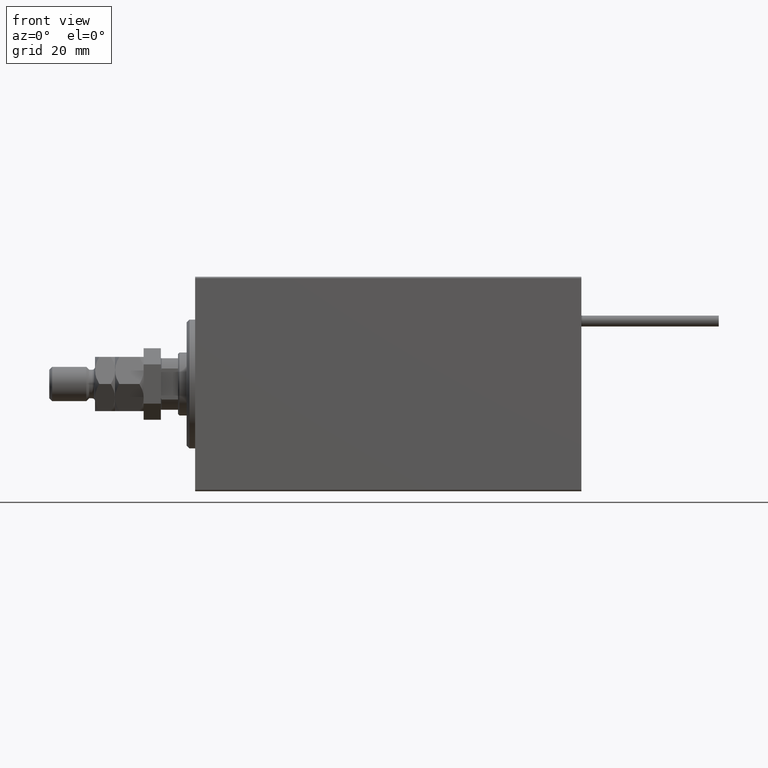
[diagram: clean part render]
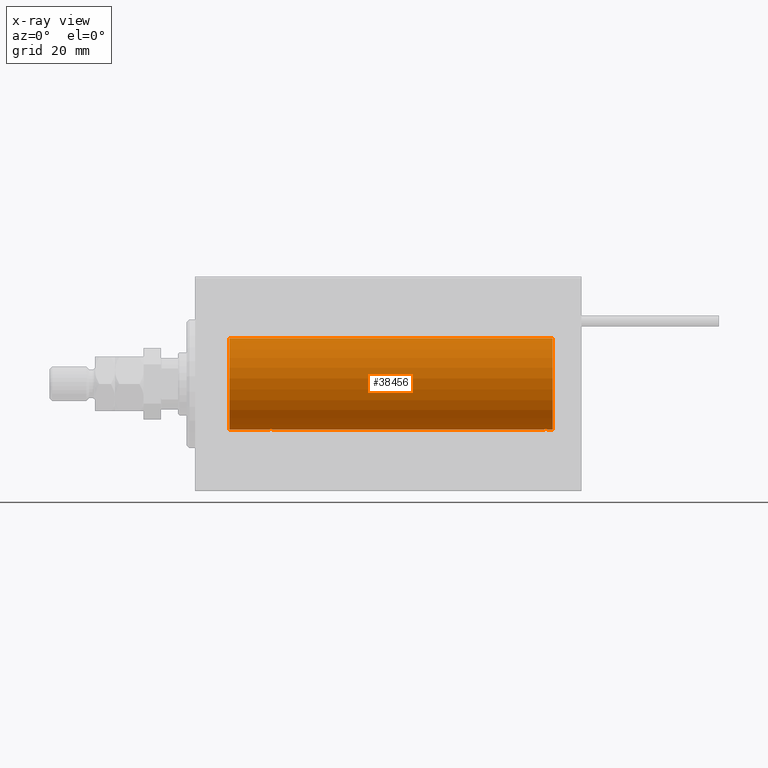
[diagram: x-ray — body ghosted, one internal face saturated and labeled with its STEP entity id]
A machine part, front view, then the same camera in x-ray: the body is ghosted and one INTERNAL B-rep face — a face not visible from any outside direction — is saturated and labeled: STEP entity #38456.
In plain terms, the highlighted cylindrical surface (partial cylindrical patch) has radius 16 mm, axis along (-1, -0, -0).
Its self-contained STEP definition (entity closure, byte-faithful):
#659 = DIRECTION ( 'NONE',  ( -1.000000000000000000, 0.000000000000000000, 0.000000000000000000 ) ) ;
#996 = CARTESIAN_POINT ( 'NONE',  ( 125.0000000000000000, 0.000000000000000000, 16.00000000000000000 ) ) ;
#1014 = CARTESIAN_POINT ( 'NONE',  ( 27.38846140829280529, -1.796613193944152753, -15.89889131367403330 ) ) ;
#1539 = CARTESIAN_POINT ( 'NONE',  ( 27.14636362870458086, -1.897207606501646104, -15.88720136683947537 ) ) ;
#1569 = CYLINDRICAL_SURFACE ( 'NONE', #43127, 16.00000000000000000 ) ;
#3205 = CARTESIAN_POINT ( 'NONE',  ( 123.7202803347841638, -1.589957129871029551, -15.92097237843275259 ) ) ;
#3465 = CARTESIAN_POINT ( 'NONE',  ( 123.1463636287045631, -1.897207606501647881, -15.88720136683947537 ) ) ;
#3695 = VECTOR ( 'NONE', #20656, 1000.000000000000000 ) ;
#3726 = CARTESIAN_POINT ( 'NONE',  ( 123.5032078479132025, -1.735114343256366043, -15.90580722143557857 ) ) ;
#4025 = ORIENTED_EDGE ( 'NONE', *, *, #26823, .F. ) ;
#5593 = CARTESIAN_POINT ( 'NONE',  ( 125.0000000000000000, 0.000000000000000000, 0.000000000000000000 ) ) ;
#5618 = DIRECTION ( 'NONE',  ( 0.000000000000000000, 0.000000000000000000, 1.000000000000000000 ) ) ;
#5804 = EDGE_CURVE ( 'NONE', #9066, #28895, #22082, .T. ) ;
#5828 = CARTESIAN_POINT ( 'NONE',  ( 24.50000000000000000, -2.931586893697621157E-15, -16.00000000000000000 ) ) ;
#6898 = VERTEX_POINT ( 'NONE', #20383 ) ;
#6953 = CARTESIAN_POINT ( 'NONE',  ( 123.8230484471320665, -1.505501573616976563, -15.92928245046055302 ) ) ;
#7214 = CARTESIAN_POINT ( 'NONE',  ( 121.6140785003150881, -1.797863738508706843, -15.89874935709250892 ) ) ;
#7484 = CARTESIAN_POINT ( 'NONE',  ( 124.5000000000000284, -0.2611263091397175717, -16.00000000000000711 ) ) ;
#8707 = EDGE_CURVE ( 'NONE', #36964, #6898, #50677, .T. ) ;
#9066 = VERTEX_POINT ( 'NONE', #34282 ) ;
#9830 = CARTESIAN_POINT ( 'NONE',  ( 24.75321871145306218, -1.008257970366813749, -15.97001510549667458 ) ) ;
#11034 = LINE ( 'NONE', #19054, #11179 ) ;
#11054 = CARTESIAN_POINT ( 'NONE',  ( 125.0000000000000000, 1.959434878635765131E-15, -16.00000000000000000 ) ) ;
#11179 = VECTOR ( 'NONE', #15321, 1000.000000000000000 ) ;
#11225 = CARTESIAN_POINT ( 'NONE',  ( 120.9023686404279943, -1.231048876942810066, -15.95364199493483426 ) ) ;
#11380 = EDGE_CURVE ( 'NONE', #6898, #19098, #24653, .T. ) ;
#11704 = EDGE_CURVE ( 'NONE', #38589, #36964, #47652, .T. ) ;
#11715 = ORIENTED_EDGE ( 'NONE', *, *, #26161, .T. ) ;
#13349 = VECTOR ( 'NONE', #18337, 1000.000000000000000 ) ;
#13848 = CARTESIAN_POINT ( 'NONE',  ( 25.61407850031505617, -1.797863738508699294, -15.89874935709251247 ) ) ;
#14070 = CARTESIAN_POINT ( 'NONE',  ( 125.0000000000000000, 1.959434878635765131E-15, -16.00000000000000000 ) ) ;
#15244 = CARTESIAN_POINT ( 'NONE',  ( 122.3691959142342256, -2.000094120337584158, -15.87449600834271024 ) ) ;
#15321 = DIRECTION ( 'NONE',  ( -1.000000000000000000, -0.000000000000000000, -0.000000000000000000 ) ) ;
#15773 = CARTESIAN_POINT ( 'NONE',  ( 123.3884614082928550, -1.796613193944152531, -15.89889131367403685 ) ) ;
#16294 = AXIS2_PLACEMENT_3D ( 'NONE', #49642, #659, #37061 ) ;
#16954 = ORIENTED_EDGE ( 'NONE', *, *, #11704, .T. ) ;
#17109 = FACE_OUTER_BOUND ( 'NONE', #22193, .T. ) ;
#17633 = DIRECTION ( 'NONE',  ( 0.000000000000000000, 0.000000000000000000, 1.000000000000000000 ) ) ;
#17856 = CARTESIAN_POINT ( 'NONE',  ( 25.85623329282660166, -1.898087287925298794, -15.88709570026284545 ) ) ;
#18327 = B_SPLINE_CURVE_WITH_KNOTS ( 'NONE', 3,
 ( #27001, #7484, #40107, #40365, #43865, #6953, #3205, #3726, #15773, #3465, #35576, #24044, #32086, #15244, #31551, #48424, #47892, #7214, #35841, #36372, #35305, #11225, #22989, #39847, #52158, #44390 ),
 .UNSPECIFIED., .F., .F.,
 ( 4, 2, 2, 2, 2, 2, 2, 2, 2, 2, 2, 2, 4 ),
 ( 0.006259031236593872935, 0.007041222816026943693, 0.007823414395460012716, 0.008214510185176548962, 0.008605605974893081739, 0.008996701764609617985, 0.009387797554326150762, 0.009778893344042687008, 0.01016998913375921978, 0.01056108492347575603, 0.01095218071319228881, 0.01173437229262535957, 0.01251656387205842859 ),
 .UNSPECIFIED. ) ;
#18337 = DIRECTION ( 'NONE',  ( -1.000000000000000000, -0.000000000000000000, -0.000000000000000000 ) ) ;
#18379 = CARTESIAN_POINT ( 'NONE',  ( 26.36919591423421139, -2.000094120337574388, -15.87449600834271024 ) ) ;
#19054 = CARTESIAN_POINT ( 'NONE',  ( 125.0000000000000000, 1.959434878635765131E-15, -16.00000000000000000 ) ) ;
#19098 = VERTEX_POINT ( 'NONE', #47249 ) ;
#20268 = VECTOR ( 'NONE', #39415, 1000.000000000000000 ) ;
#20383 = CARTESIAN_POINT ( 'NONE',  ( 11.99999999999999645, 1.959434878635765131E-15, -16.00000000000000000 ) ) ;
#20656 = DIRECTION ( 'NONE',  ( -1.000000000000000000, -0.000000000000000000, -0.000000000000000000 ) ) ;
#21338 = CARTESIAN_POINT ( 'NONE',  ( 28.44751141031268915, -0.5244724041436300555, -15.99321727742820620 ) ) ;
#21604 = CARTESIAN_POINT ( 'NONE',  ( 26.23917179650637266, -1.987201773464430055, -15.87613558886576470 ) ) ;
#21868 = CARTESIAN_POINT ( 'NONE',  ( 27.82304844713206293, -1.505501573616970568, -15.92928245046054947 ) ) ;
#21986 = ORIENTED_EDGE ( 'NONE', *, *, #8707, .T. ) ;
#22082 = LINE ( 'NONE', #14070, #13349 ) ;
#22193 = EDGE_LOOP ( 'NONE', ( #4025, #41952, #50559, #11715, #16954, #21986, #24279, #49689 ) ) ;
#22384 = CARTESIAN_POINT ( 'NONE',  ( 26.63366663175618498, -1.999904855391105851, -15.87451985347842687 ) ) ;
#22417 = CARTESIAN_POINT ( 'NONE',  ( 124.5000000000000142, 1.959434851248285101E-15, -16.00000000000000000 ) ) ;
#22989 = CARTESIAN_POINT ( 'NONE',  ( 120.7532187114530871, -1.008257970366822631, -15.97001510549667458 ) ) ;
#23748 = CARTESIAN_POINT ( 'NONE',  ( 28.49999999999999645, 1.959434851239213200E-15, -16.00000000000000000 ) ) ;
#24044 = CARTESIAN_POINT ( 'NONE',  ( 122.7637046287817810, -1.986819684797424879, -15.87618369521983830 ) ) ;
#24279 = ORIENTED_EDGE ( 'NONE', *, *, #11380, .T. ) ;
#24653 = CIRCLE ( 'NONE', #45191, 16.00000000000000000 ) ;
#26137 = CARTESIAN_POINT ( 'NONE',  ( 24.55325995304361086, -0.5272875822566835957, -15.99312147175147736 ) ) ;
#26161 = EDGE_CURVE ( 'NONE', #43197, #38589, #11034, .T. ) ;
#26823 = EDGE_CURVE ( 'NONE', #9066, #31076, #28241, .T. ) ;
#27001 = CARTESIAN_POINT ( 'NONE',  ( 124.5000000000000142, 1.959434851248285101E-15, -16.00000000000000000 ) ) ;
#28241 = CIRCLE ( 'NONE', #16294, 16.00000000000000000 ) ;
#28895 = VERTEX_POINT ( 'NONE', #22417 ) ;
#28927 = CARTESIAN_POINT ( 'NONE',  ( 120.5000000000000142, -1.209844185672201777E-14, -16.00000000000000000 ) ) ;
#29899 = CARTESIAN_POINT ( 'NONE',  ( 27.50320784791317763, -1.735114343256362712, -15.90580722143557502 ) ) ;
#29929 = DIRECTION ( 'NONE',  ( -1.000000000000000000, -0.000000000000000000, -0.000000000000000000 ) ) ;
#31076 = VERTEX_POINT ( 'NONE', #996 ) ;
#31551 = CARTESIAN_POINT ( 'NONE',  ( 122.2391717965063833, -1.987201773464437160, -15.87613558886576470 ) ) ;
#31590 = EDGE_CURVE ( 'NONE', #31076, #19098, #32716, .T. ) ;
#32086 = CARTESIAN_POINT ( 'NONE',  ( 122.6336666317562418, -1.999904855391112735, -15.87451985347843042 ) ) ;
#32716 = LINE ( 'NONE', #49061, #3695 ) ;
#33657 = CARTESIAN_POINT ( 'NONE',  ( 27.01937114547927266, -1.935780515549990088, -15.88248768234623576 ) ) ;
#33919 = CARTESIAN_POINT ( 'NONE',  ( 25.98335998918949841, -1.936513707523809469, -15.88239801746204805 ) ) ;
#34174 = CARTESIAN_POINT ( 'NONE',  ( 25.28178127159713995, -1.591545514129671046, -15.92081325887754417 ) ) ;
#34282 = CARTESIAN_POINT ( 'NONE',  ( 125.0000000000000000, 1.959434878635765131E-15, -16.00000000000000000 ) ) ;
#34759 = CARTESIAN_POINT ( 'NONE',  ( 11.99999999999999645, 0.000000000000000000, 0.000000000000000000 ) ) ;
#35305 = CARTESIAN_POINT ( 'NONE',  ( 121.1789566519659473, -1.507256214862793264, -15.92911555180481109 ) ) ;
#35576 = CARTESIAN_POINT ( 'NONE',  ( 123.0193711454792975, -1.935780515549994307, -15.88248768234623221 ) ) ;
#35841 = CARTESIAN_POINT ( 'NONE',  ( 121.4992163424659850, -1.736521253711160728, -15.90565326803670665 ) ) ;
#36372 = CARTESIAN_POINT ( 'NONE',  ( 121.2817812715971399, -1.591545514129688588, -15.92081325887754417 ) ) ;
#36964 = VERTEX_POINT ( 'NONE', #40172 ) ;
#37061 = DIRECTION ( 'NONE',  ( 0.000000000000000000, 0.000000000000000000, 1.000000000000000000 ) ) ;
#37680 = CARTESIAN_POINT ( 'NONE',  ( 28.09938581325380724, -1.228793614424118497, -15.95381972293796835 ) ) ;
#38196 = CARTESIAN_POINT ( 'NONE',  ( 27.72028033478412112, -1.589957129871027330, -15.92097237843274904 ) ) ;
#38456 = ADVANCED_FACE ( 'NONE', ( #17109 ), #1569, .F. ) ;
#38589 = VERTEX_POINT ( 'NONE', #23748 ) ;
#39415 = DIRECTION ( 'NONE',  ( -1.000000000000000000, -0.000000000000000000, -0.000000000000000000 ) ) ;
#39847 = CARTESIAN_POINT ( 'NONE',  ( 120.5532599530436215, -0.5272875822566934767, -15.99312147175147381 ) ) ;
#40107 = CARTESIAN_POINT ( 'NONE',  ( 124.4475114103127282, -0.5244724041436340523, -15.99321727742820975 ) ) ;
#40172 = CARTESIAN_POINT ( 'NONE',  ( 24.50000000000000000, -2.931586893697621157E-15, -16.00000000000000000 ) ) ;
#40365 = CARTESIAN_POINT ( 'NONE',  ( 124.2481662700621143, -1.005876079953903490, -15.97016854943970188 ) ) ;
#41691 = CARTESIAN_POINT ( 'NONE',  ( 28.50000000000000355, -0.2611263091397186265, -16.00000000000000355 ) ) ;
#41952 = ORIENTED_EDGE ( 'NONE', *, *, #5804, .T. ) ;
#41953 = CARTESIAN_POINT ( 'NONE',  ( 26.76370462878175260, -1.986819684797417995, -15.87618369521984185 ) ) ;
#42470 = CARTESIAN_POINT ( 'NONE',  ( 24.50000000000000711, -0.2645044045393414311, -16.00000000000000355 ) ) ;
#42661 = EDGE_CURVE ( 'NONE', #28895, #43197, #18327, .T. ) ;
#42729 = CARTESIAN_POINT ( 'NONE',  ( 28.24816627006211078, -1.005876079953899049, -15.97016854943970188 ) ) ;
#43127 = AXIS2_PLACEMENT_3D ( 'NONE', #5593, #29929, #17633 ) ;
#43197 = VERTEX_POINT ( 'NONE', #28927 ) ;
#43865 = CARTESIAN_POINT ( 'NONE',  ( 124.0993858132538321, -1.228793614424122271, -15.95381972293797013 ) ) ;
#44390 = CARTESIAN_POINT ( 'NONE',  ( 120.5000000000000142, -1.209844185672201777E-14, -16.00000000000000000 ) ) ;
#45191 = AXIS2_PLACEMENT_3D ( 'NONE', #34759, #50567, #5618 ) ;
#45985 = CARTESIAN_POINT ( 'NONE',  ( 28.49999999999999645, 1.959434851239213200E-15, -16.00000000000000000 ) ) ;
#46247 = CARTESIAN_POINT ( 'NONE',  ( 25.49921634246596014, -1.736521253711144963, -15.90565326803671375 ) ) ;
#46503 = CARTESIAN_POINT ( 'NONE',  ( 24.90236864042802267, -1.231048876942801407, -15.95364199493483426 ) ) ;
#47249 = CARTESIAN_POINT ( 'NONE',  ( 11.99999999999999645, 0.000000000000000000, 16.00000000000000000 ) ) ;
#47652 = B_SPLINE_CURVE_WITH_KNOTS ( 'NONE', 3,
 ( #45985, #41691, #21338, #42729, #37680, #21868, #38196, #29899, #1014, #1539, #33657, #41953, #22384, #18379, #21604, #33919, #17856, #13848, #46247, #34174, #50510, #46503, #9830, #26137, #42470, #5828 ),
 .UNSPECIFIED., .F., .F.,
 ( 4, 2, 2, 2, 2, 2, 2, 2, 2, 2, 2, 2, 4 ),
 ( 0.006259031236593877272, 0.007041222816026943693, 0.007823414395460009246, 0.008214510185176542023, 0.008605605974893074800, 0.008996701764609607577, 0.009387797554326140353, 0.009778893344042673130, 0.01016998913375920591, 0.01056108492347573868, 0.01095218071319227146, 0.01173437229262534222, 0.01251656387205841471 ),
 .UNSPECIFIED. ) ;
#47892 = CARTESIAN_POINT ( 'NONE',  ( 121.8562332928266159, -1.898087287925306121, -15.88709570026284545 ) ) ;
#48424 = CARTESIAN_POINT ( 'NONE',  ( 121.9833599891894522, -1.936513707523815908, -15.88239801746205870 ) ) ;
#49061 = CARTESIAN_POINT ( 'NONE',  ( 125.0000000000000000, 0.000000000000000000, 16.00000000000000000 ) ) ;
#49642 = CARTESIAN_POINT ( 'NONE',  ( 125.0000000000000000, 0.000000000000000000, 0.000000000000000000 ) ) ;
#49689 = ORIENTED_EDGE ( 'NONE', *, *, #31590, .F. ) ;
#50510 = CARTESIAN_POINT ( 'NONE',  ( 25.17895665196594379, -1.507256214862784161, -15.92911555180481820 ) ) ;
#50559 = ORIENTED_EDGE ( 'NONE', *, *, #42661, .T. ) ;
#50567 = DIRECTION ( 'NONE',  ( -1.000000000000000000, 0.000000000000000000, 0.000000000000000000 ) ) ;
#50677 = LINE ( 'NONE', #11054, #20268 ) ;
#52158 = CARTESIAN_POINT ( 'NONE',  ( 120.5000000000000142, -0.2645044045393525889, -16.00000000000000711 ) ) ;